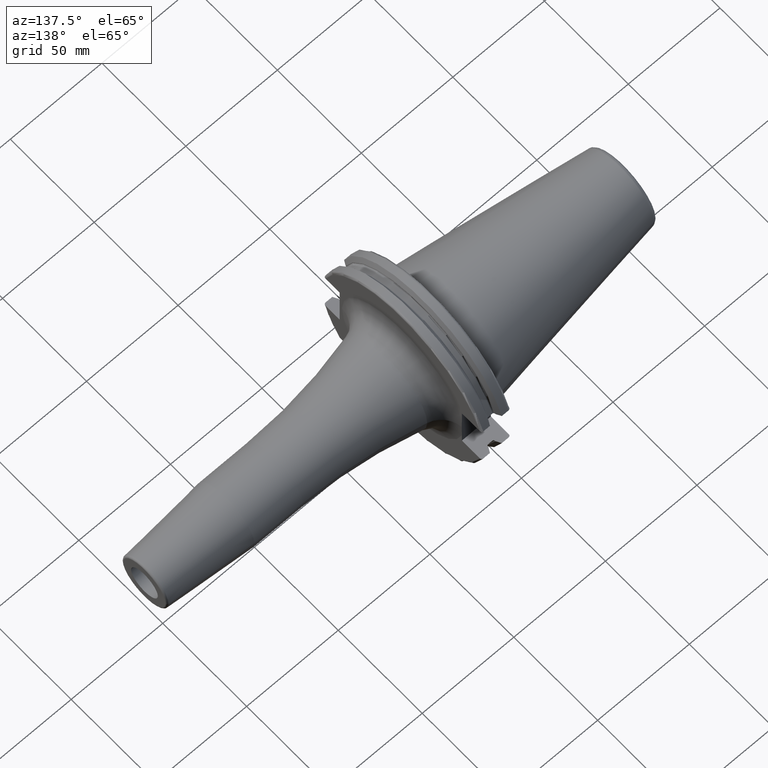
[diagram: clean part render]
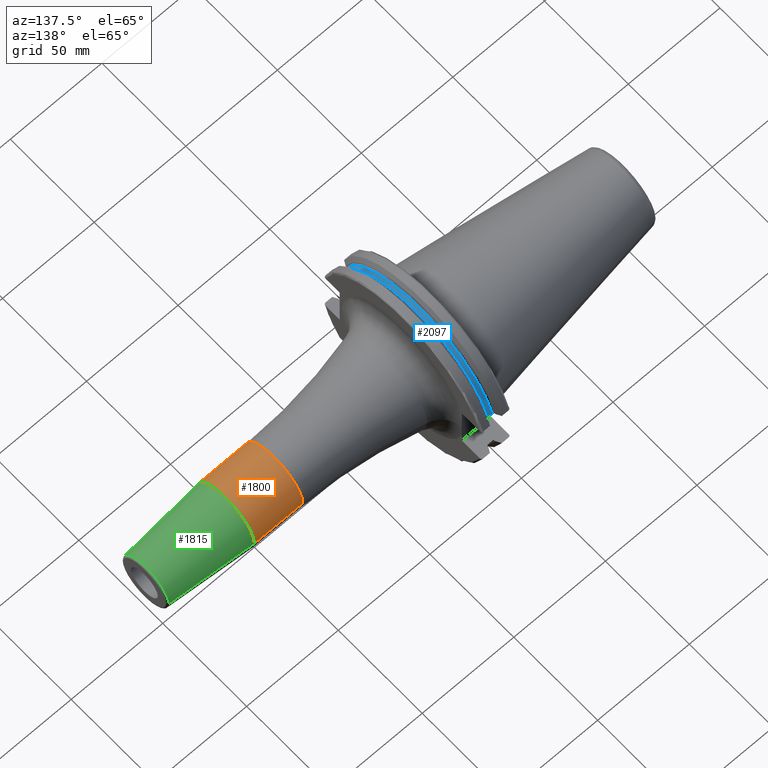
[diagram: same view with three faces highlighted in distinct colors, each labeled with its STEP entity id]
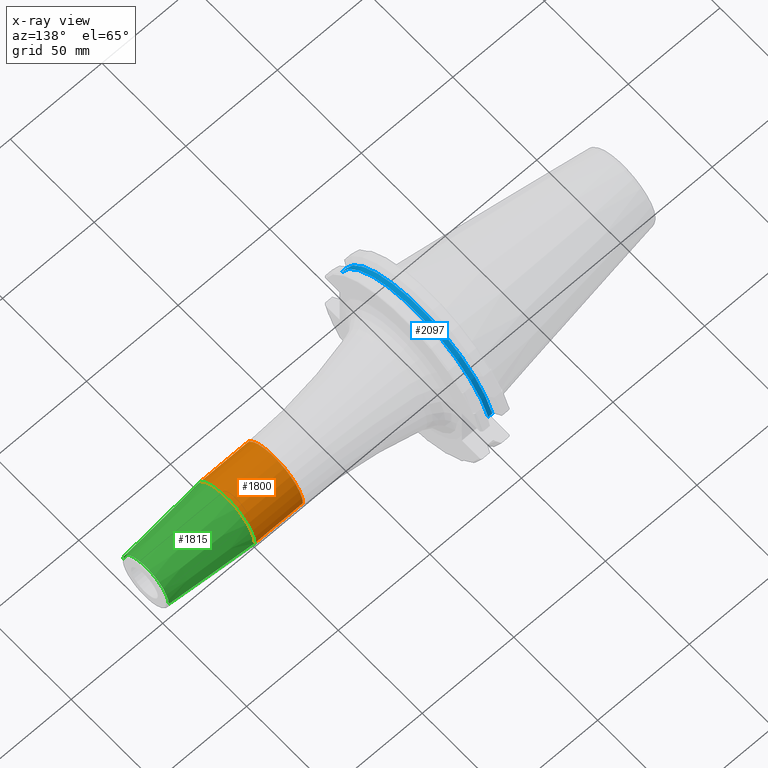
[diagram: x-ray of the same camera — body ghosted, the three highlighted faces saturated]
A machine part, auxiliary view with three faces highlighted in distinct colors.
The next image is the same camera in x-ray (body ghosted, the three faces saturated) — at least one of them is partly hidden behind the body in this view.
Their STEP definitions:

[orange] entity #1800 — the highlighted cylindrical surface (partial cylindrical patch) has radius 17 mm, axis along (1, 0, 0).
#221=DIRECTION('',(-1.E0,0.E0,0.E0));
#222=VECTOR('',#221,2.647828342339E1);
#223=CARTESIAN_POINT('',(1.155282834234E2,-1.7E1,0.E0));
#224=LINE('',#223,#222);
#230=DIRECTION('',(-1.E0,0.E0,0.E0));
#231=VECTOR('',#230,2.647828342339E1);
#232=CARTESIAN_POINT('',(1.155282834234E2,1.7E1,0.E0));
#233=LINE('',#232,#231);
#234=CARTESIAN_POINT('',(8.905E1,0.E0,0.E0));
#235=DIRECTION('',(1.E0,0.E0,0.E0));
#236=DIRECTION('',(0.E0,1.E0,0.E0));
#237=AXIS2_PLACEMENT_3D('',#234,#235,#236);
#239=CARTESIAN_POINT('',(1.155282834234E2,0.E0,0.E0));
#240=DIRECTION('',(1.E0,0.E0,0.E0));
#241=DIRECTION('',(0.E0,1.E0,0.E0));
#242=AXIS2_PLACEMENT_3D('',#239,#240,#241);
#1470=CARTESIAN_POINT('',(1.155282834234E2,1.7E1,0.E0));
#1471=CARTESIAN_POINT('',(1.155282834234E2,-1.7E1,0.E0));
#1472=VERTEX_POINT('',#1470);
#1473=VERTEX_POINT('',#1471);
#1490=CARTESIAN_POINT('',(8.905E1,1.7E1,0.E0));
#1491=CARTESIAN_POINT('',(8.905E1,-1.7E1,0.E0));
#1492=VERTEX_POINT('',#1490);
#1493=VERTEX_POINT('',#1491);
#1788=CARTESIAN_POINT('',(1.20025E1,0.E0,0.E0));
#1789=DIRECTION('',(1.E0,0.E0,0.E0));
#1790=DIRECTION('',(0.E0,-1.E0,0.E0));
#1791=AXIS2_PLACEMENT_3D('',#1788,#1789,#1790);
#1792=CYLINDRICAL_SURFACE('',#1791,1.7E1);
#1793=ORIENTED_EDGE('',*,*,#1739,.F.);
#1794=ORIENTED_EDGE('',*,*,#1783,.F.);
#1796=ORIENTED_EDGE('',*,*,#1795,.T.);
#1797=ORIENTED_EDGE('',*,*,#1779,.T.);
#1798=EDGE_LOOP('',(#1793,#1794,#1796,#1797));
#1799=FACE_OUTER_BOUND('',#1798,.F.);
#1800=ADVANCED_FACE('',(#1799),#1792,.T.);
#238=CIRCLE('',#237,1.7E1);
#243=CIRCLE('',#242,1.7E1);
#1739=EDGE_CURVE('',#1492,#1493,#238,.T.);
#1779=EDGE_CURVE('',#1473,#1493,#224,.T.);
#1783=EDGE_CURVE('',#1472,#1492,#233,.T.);
#1795=EDGE_CURVE('',#1472,#1473,#243,.T.);

[blue] entity #2097 — the highlighted cylindrical surface (partial cylindrical patch) has radius 45.5 mm, axis along (1, 0, 0).
#371=CARTESIAN_POINT('',(1.00125E1,4.363301502303E1,1.29E1));
#391=CARTESIAN_POINT('',(1.00125E1,-4.363301502303E1,1.29E1));
#398=DIRECTION('',(1.E0,0.E0,0.E0));
#399=VECTOR('',#398,2.325E0);
#400=CARTESIAN_POINT('',(1.00125E1,4.363301502303E1,1.29E1));
#401=LINE('',#400,#399);
#402=DIRECTION('',(1.E0,0.E0,0.E0));
#403=VECTOR('',#402,2.325E0);
#404=CARTESIAN_POINT('',(1.00125E1,-4.363301502303E1,1.29E1));
#405=LINE('',#404,#403);
#406=CARTESIAN_POINT('',(1.00125E1,0.E0,0.E0));
#407=DIRECTION('',(1.E0,0.E0,0.E0));
#408=DIRECTION('',(0.E0,9.589673631435E-1,2.835164835165E-1));
#409=AXIS2_PLACEMENT_3D('',#406,#407,#408);
#433=CARTESIAN_POINT('',(1.23375E1,0.E0,0.E0));
#434=DIRECTION('',(1.E0,0.E0,0.E0));
#435=DIRECTION('',(0.E0,9.589673631435E-1,2.835164835165E-1));
#436=AXIS2_PLACEMENT_3D('',#433,#434,#435);
#1332=VERTEX_POINT('',#371);
#1333=VERTEX_POINT('',#391);
#1334=CARTESIAN_POINT('',(1.23375E1,4.363301502303E1,1.29E1));
#1335=VERTEX_POINT('',#1334);
#1336=CARTESIAN_POINT('',(1.23375E1,-4.363301502303E1,1.29E1));
#1337=VERTEX_POINT('',#1336);
#2085=CARTESIAN_POINT('',(7.325E0,0.E0,0.E0));
#2086=DIRECTION('',(1.E0,0.E0,0.E0));
#2087=DIRECTION('',(0.E0,-1.E0,0.E0));
#2088=AXIS2_PLACEMENT_3D('',#2085,#2086,#2087);
#2089=CYLINDRICAL_SURFACE('',#2088,4.55E1);
#2090=ORIENTED_EDGE('',*,*,#2018,.T.);
#2092=ORIENTED_EDGE('',*,*,#2091,.T.);
#2093=ORIENTED_EDGE('',*,*,#2047,.F.);
#2094=ORIENTED_EDGE('',*,*,#2078,.F.);
#2095=EDGE_LOOP('',(#2090,#2092,#2093,#2094));
#2096=FACE_OUTER_BOUND('',#2095,.F.);
#2097=ADVANCED_FACE('',(#2096),#2089,.T.);
#410=CIRCLE('',#409,4.55E1);
#437=CIRCLE('',#436,4.55E1);
#2018=EDGE_CURVE('',#1332,#1335,#401,.T.);
#2047=EDGE_CURVE('',#1333,#1337,#405,.T.);
#2078=EDGE_CURVE('',#1332,#1333,#410,.T.);
#2091=EDGE_CURVE('',#1335,#1337,#437,.T.);

[green] entity #1815 — the highlighted conical surface has half-angle 4.5 deg.
#239=CARTESIAN_POINT('',(1.155282834234E2,0.E0,0.E0));
#240=DIRECTION('',(1.E0,0.E0,0.E0));
#241=DIRECTION('',(0.E0,1.E0,0.E0));
#242=AXIS2_PLACEMENT_3D('',#239,#240,#241);
#244=CARTESIAN_POINT('',(1.590784590957E2,0.E0,0.E0));
#245=DIRECTION('',(-1.E0,0.E0,0.E0));
#246=DIRECTION('',(0.E0,-1.E0,0.E0));
#247=AXIS2_PLACEMENT_3D('',#244,#245,#246);
#264=DIRECTION('',(-9.969173337331E-1,7.845909572785E-2,7.699813814819E-14));
#265=VECTOR('',#264,4.368484145948E1);
#266=CARTESIAN_POINT('',(1.590784590957E2,1.357252684207E1,
-3.361569558120E-12));
#267=LINE('',#266,#265);
#268=DIRECTION('',(-9.969173337331E-1,-7.845909572785E-2,-7.691953061472E-14));
#269=VECTOR('',#268,4.368484145948E1);
#270=CARTESIAN_POINT('',(1.590784590957E2,-1.357252684207E1,
3.358135600483E-12));
#271=LINE('',#270,#269);
#1470=CARTESIAN_POINT('',(1.155282834234E2,1.7E1,0.E0));
#1471=CARTESIAN_POINT('',(1.155282834234E2,-1.7E1,0.E0));
#1472=VERTEX_POINT('',#1470);
#1473=VERTEX_POINT('',#1471);
#1474=CARTESIAN_POINT('',(1.590784590957E2,1.357252684207E1,0.E0));
#1475=CARTESIAN_POINT('',(1.590784590957E2,-1.357252684207E1,0.E0));
#1476=VERTEX_POINT('',#1474);
#1477=VERTEX_POINT('',#1475);
#1801=CARTESIAN_POINT('',(1.373033712596E2,0.E0,0.E0));
#1802=DIRECTION('',(-1.E0,0.E0,0.E0));
#1803=DIRECTION('',(0.E0,1.E0,0.E0));
#1804=AXIS2_PLACEMENT_3D('',#1801,#1802,#1803);
#1805=CONICAL_SURFACE('',#1804,1.528626342104E1,4.5E0);
#1807=ORIENTED_EDGE('',*,*,#1806,.F.);
#1809=ORIENTED_EDGE('',*,*,#1808,.T.);
#1810=ORIENTED_EDGE('',*,*,#1795,.F.);
#1812=ORIENTED_EDGE('',*,*,#1811,.F.);
#1813=EDGE_LOOP('',(#1807,#1809,#1810,#1812));
#1814=FACE_OUTER_BOUND('',#1813,.F.);
#1815=ADVANCED_FACE('',(#1814),#1805,.T.);
#243=CIRCLE('',#242,1.7E1);
#248=CIRCLE('',#247,1.357252684207E1);
#1795=EDGE_CURVE('',#1472,#1473,#243,.T.);
#1806=EDGE_CURVE('',#1477,#1476,#248,.T.);
#1808=EDGE_CURVE('',#1477,#1473,#271,.T.);
#1811=EDGE_CURVE('',#1476,#1472,#267,.T.);